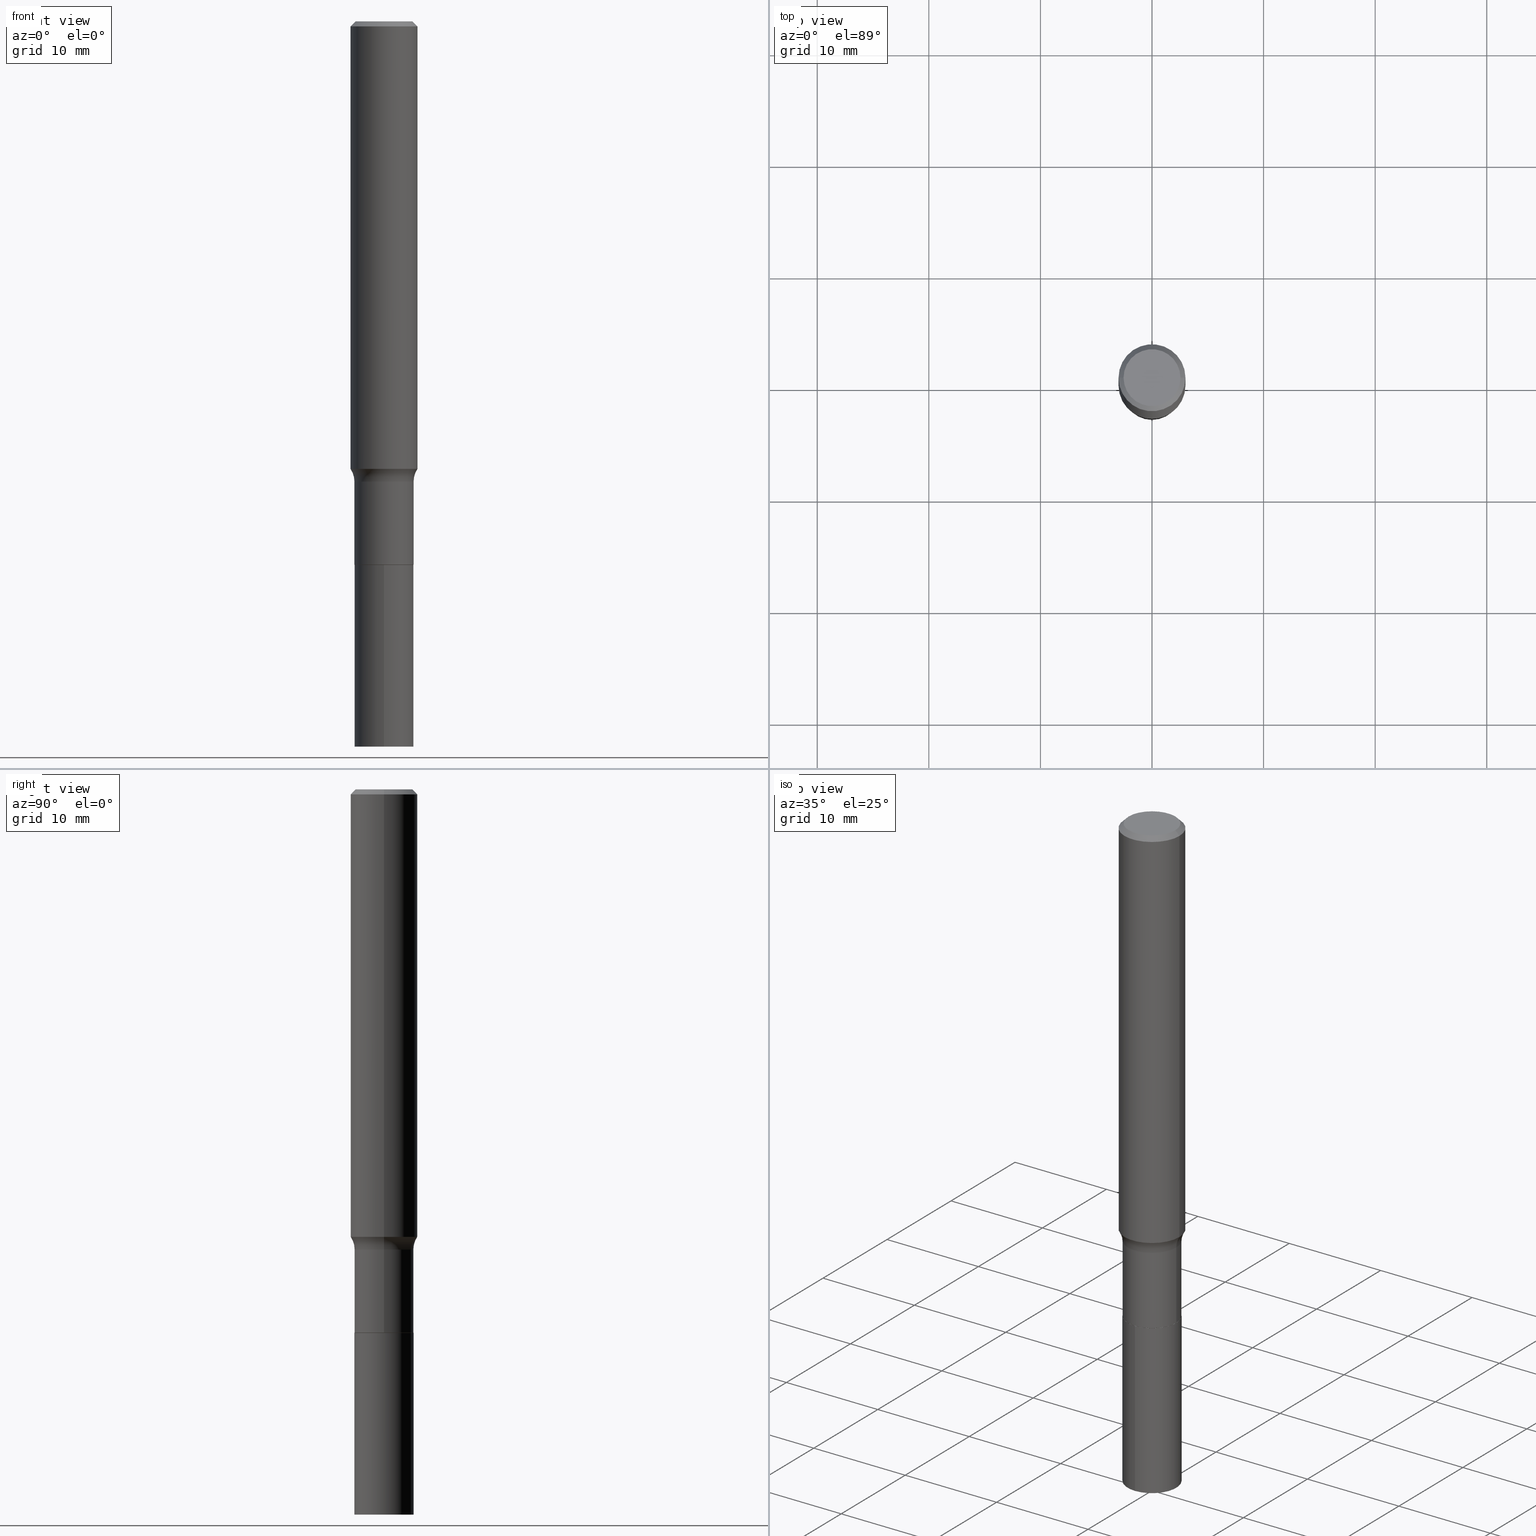
[diagram: canonical four-view strip — front | top / right | iso, engineering-drawing reading convention]
A machine part, canonical four-view strip (front | top / right | iso — engineering-drawing reading convention). The complete STEP part file that produces these views, byte-faithful:
ISO-10303-21;
HEADER;
FILE_DESCRIPTION (( 'STEP AP203' ),
    '1' );
FILE_NAME ('67728.STEP',
    '2024-04-19T16:13:01',
    ( '' ),
    ( '' ),
    'SwSTEP 2.0',
    'SolidWorks 2023',
    '' );
FILE_SCHEMA (( 'CONFIG_CONTROL_DESIGN' ));
ENDSEC;

DATA;
#1 = ORIENTED_EDGE ( 'NONE', *, *, #117, .F. ) ;
#2 = AXIS2_PLACEMENT_3D ( 'NONE', #454, #231, #405 ) ;
#3 = LOCAL_TIME ( 12, 13, 1.000000000000000000, #431 ) ;
#4 = ORIENTED_EDGE ( 'NONE', *, *, #138, .F. ) ;
#5 = EDGE_LOOP ( 'NONE', ( #334, #22 ) ) ;
#6 = EDGE_CURVE ( 'NONE', #77, #219, #241, .T. ) ;
#7 = EDGE_CURVE ( 'NONE', #189, #166, #35, .T. ) ;
#8 = ORIENTED_EDGE ( 'NONE', *, *, #124, .T. ) ;
#9 = COORDINATED_UNIVERSAL_TIME_OFFSET ( 5, 0, .BEHIND. ) ;
#10 = AXIS2_PLACEMENT_3D ( 'NONE', #62, #424, #246 ) ;
#11 = ORGANIZATION ( 'UNSPECIFIED', 'UNSPECIFIED', '' ) ;
#12 = CARTESIAN_POINT ( 'NONE',  ( 0.1843499999999999306, -6.956776567644963090E-15, -1.623800000000000132 ) ) ;
#13 = DIRECTION ( 'NONE',  ( -2.445682234328960793E-29, 3.491175697593613777E-15, 1.000000000000000000 ) ) ;
#14 = EDGE_CURVE ( 'NONE', #190, #395, #203, .T. ) ;
#15 = DIRECTION ( 'NONE',  ( -2.445468806185136597E-29, 3.491481338843145583E-15, 1.000000000000000000 ) ) ;
#16 = DIRECTION ( 'NONE',  ( 1.000000000000000000, -6.982962677686270655E-15, 0.000000000000000000 ) ) ;
#17 = ORIENTED_EDGE ( 'NONE', *, *, #191, .T. ) ;
#18 = CARTESIAN_POINT ( 'NONE',  ( 4.332147990156995868E-31, -6.185159191760670395E-17, -0.01771500000000010913 ) ) ;
#19 = ORIENTED_EDGE ( 'NONE', *, *, #459, .F. ) ;
#20 = CLOSED_SHELL ( 'NONE', ( #46, #105, #26, #234 ) ) ;
#21 = FACE_OUTER_BOUND ( 'NONE', #5, .T. ) ;
#22 = ORIENTED_EDGE ( 'NONE', *, *, #262, .T. ) ;
#23 = DIRECTION ( 'NONE',  ( 1.000000000000000000, -6.982962677686265133E-15, 4.883557194083112901E-29 ) ) ;
#24 = CARTESIAN_POINT ( 'NONE',  ( 6.258336242776719159E-29, -8.934853672551297411E-15, -2.559100000000000374 ) ) ;
#25 = CARTESIAN_POINT ( 'NONE',  ( 3.970952247483424919E-29, -5.669467398013499815E-15, -1.623800000000000132 ) ) ;
#26 = ADVANCED_FACE ( 'NONE', ( #50 ), #127, .T. ) ;
#27 = DIRECTION ( 'NONE',  ( -2.445468806185136597E-29, 3.491481338843145583E-15, 1.000000000000000000 ) ) ;
#28 = CIRCLE ( 'NONE', #151, 0.1043499999999999844 ) ;
#29 = DIRECTION ( 'NONE',  ( -2.445468806185136597E-29, 3.491481338843145583E-15, 1.000000000000000000 ) ) ;
#30 = DIRECTION ( 'NONE',  ( -2.445468806185136877E-29, 3.491481338843145188E-15, 1.000000000000000000 ) ) ;
#31 = CARTESIAN_POINT ( 'NONE',  ( 4.688208248337526170E-29, -6.693518874696195618E-15, -1.917100000000000248 ) ) ;
#32 =( NAMED_UNIT ( * ) PLANE_ANGLE_UNIT ( ) SI_UNIT ( $, .RADIAN. ) );
#33 = APPROVAL_STATUS ( 'not_yet_approved' ) ;
#34 = EDGE_CURVE ( 'NONE', #366, #44, #146, .T. ) ;
#35 = CIRCLE ( 'NONE', #309, 0.08000000000000002942 ) ;
#36 = APPLICATION_PROTOCOL_DEFINITION ( 'international standard', 'config_control_design', 1994, #112 ) ;
#37 = AXIS2_PLACEMENT_3D ( 'NONE', #25, #29, #216 ) ;
#38 = ORIENTED_EDGE ( 'NONE', *, *, #433, .T. ) ;
#39 = EDGE_LOOP ( 'NONE', ( #58, #235, #83, #222 ) ) ;
#40 = ORIENTED_EDGE ( 'NONE', *, *, #41, .T. ) ;
#41 = EDGE_CURVE ( 'NONE', #153, #261, #419, .T. ) ;
#42 = VERTEX_POINT ( 'NONE', #406 ) ;
#43 = CC_DESIGN_DATE_AND_TIME_ASSIGNMENT ( #245, #140, ( #54 ) ) ;
#44 = VERTEX_POINT ( 'NONE', #162 ) ;
#45 = ORIENTED_EDGE ( 'NONE', *, *, #197, .F. ) ;
#46 = ADVANCED_FACE ( 'NONE', ( #53 ), #308, .T. ) ;
#47 = DIRECTION ( 'NONE',  ( -2.445468806185136877E-29, 3.491481338843145188E-15, 1.000000000000000000 ) ) ;
#48 = AXIS2_PLACEMENT_3D ( 'NONE', #24, #170, #173 ) ;
#49 = AXIS2_PLACEMENT_3D ( 'NONE', #410, #93, #89 ) ;
#50 = FACE_OUTER_BOUND ( 'NONE', #279, .T. ) ;
#51 = DIRECTION ( 'NONE',  ( -6.982962677686265922E-15, -1.000000000000000000, 5.235932905920965262E-15 ) ) ;
#52 = DESIGN_CONTEXT ( 'detailed design', #263, 'design' ) ;
#53 = FACE_OUTER_BOUND ( 'NONE', #367, .T. ) ;
#54 = PRODUCT_DEFINITION ( 'UNKNOWN', '', #250, #52 ) ;
#55 = DIRECTION ( 'NONE',  ( -2.445468806185136597E-29, 3.491481338843145583E-15, 1.000000000000000000 ) ) ;
#56 = ADVANCED_FACE ( 'NONE', ( #360 ), #417, .F. ) ;
#57 = LINE ( 'NONE', #122, #389 ) ;
#58 = ORIENTED_EDGE ( 'NONE', *, *, #124, .F. ) ;
#59 = AXIS2_PLACEMENT_3D ( 'NONE', #315, #384, #106 ) ;
#60 = AXIS2_PLACEMENT_3D ( 'NONE', #445, #13, #380 ) ;
#61 = DIRECTION ( 'NONE',  ( 1.000000000000000000, -6.982962677686266711E-15, 4.876176775795936353E-29 ) ) ;
#62 = CARTESIAN_POINT ( 'NONE',  ( 0.000000000000000000, 0.000000000000000000, 0.000000000000000000 ) ) ;
#63 = EDGE_CURVE ( 'NONE', #349, #90, #375, .T. ) ;
#64 = CARTESIAN_POINT ( 'NONE',  ( -0.1043499999999999844, -5.439168921254473222E-15, -1.916600000000000303 ) ) ;
#65 = DIRECTION ( 'NONE',  ( -1.000000000000000000, 6.982962677686265922E-15, -4.876176775795935793E-29 ) ) ;
#66 = CARTESIAN_POINT ( 'NONE',  ( 7.414513447657111734E-16, 0.1043499999999932953, -1.917100000000000470 ) ) ;
#67 = DIRECTION ( 'NONE',  ( -2.445682234328960233E-29, 3.491175697593614171E-15, 1.000000000000000000 ) ) ;
#68 = CALENDAR_DATE ( 2024, 19, 4 ) ;
#69 = DIRECTION ( 'NONE',  ( -2.445468806185136597E-29, 3.491481338843145583E-15, 1.000000000000000000 ) ) ;
#70 = CARTESIAN_POINT ( 'NONE',  ( 0.1181000000000000799, -8.246878922347486570E-16, 5.758764772215004644E-30 ) ) ;
#71 =( NAMED_UNIT ( * ) SI_UNIT ( $, .STERADIAN. ) SOLID_ANGLE_UNIT ( ) );
#72 = ORIENTED_EDGE ( 'NONE', *, *, #6, .F. ) ;
#73 = EDGE_CURVE ( 'NONE', #190, #166, #218, .T. ) ;
#74 = APPROVAL_PERSON_ORGANIZATION ( #192, #184, #157 ) ;
#75 = ORIENTED_EDGE ( 'NONE', *, *, #285, .F. ) ;
#76 = ADVANCED_FACE ( 'NONE', ( #386 ), #180, .T. ) ;
#77 = VERTEX_POINT ( 'NONE', #352 ) ;
#78 = ORIENTED_EDGE ( 'NONE', *, *, #298, .T. ) ;
#79 = AXIS2_PLACEMENT_3D ( 'NONE', #453, #402, #193 ) ;
#80 = CIRCLE ( 'NONE', #118, 0.1181000000000001632 ) ;
#81 = EDGE_LOOP ( 'NONE', ( #75, #415, #343, #304 ) ) ;
#82 = DATE_AND_TIME ( #260, #333 ) ;
#83 = ORIENTED_EDGE ( 'NONE', *, *, #276, .T. ) ;
#84 = DIRECTION ( 'NONE',  ( -6.982962677686265922E-15, -1.000000000000000000, 2.617966452960482631E-15 ) ) ;
#85 = ORIENTED_EDGE ( 'NONE', *, *, #429, .F. ) ;
#86 = LINE ( 'NONE', #163, #430 ) ;
#87 = AXIS2_PLACEMENT_3D ( 'NONE', #198, #15, #160 ) ;
#88 = DIRECTION ( 'NONE',  ( 1.000000000000000000, -6.982962677686269077E-15, 0.000000000000000000 ) ) ;
#89 = DIRECTION ( 'NONE',  ( 1.000000000000000000, -6.982962677686266711E-15, 0.000000000000000000 ) ) ;
#90 = VERTEX_POINT ( 'NONE', #142 ) ;
#91 = DIRECTION ( 'NONE',  ( 1.000000000000000000, -6.982962677686266711E-15, 4.875668750515085695E-29 ) ) ;
#92 = ORIENTED_EDGE ( 'NONE', *, *, #262, .F. ) ;
#93 = DIRECTION ( 'NONE',  ( -2.445468806185136597E-29, 3.491481338843145583E-15, 1.000000000000000000 ) ) ;
#94 = DIRECTION ( 'NONE',  ( 0.7071067811865455743, -7.319954787623248157E-15, -0.7071067811865493491 ) ) ;
#95 = AXIS2_PLACEMENT_3D ( 'NONE', #98, #27, #292 ) ;
#96 = CONICAL_SURFACE ( 'NONE', #215, 0.1038499999999999840, 0.7853981633975507526 ) ;
#97 = CARTESIAN_POINT ( 'NONE',  ( 4.332147990156995868E-31, -6.185159191760670395E-17, -0.01771500000000010913 ) ) ;
#98 = CARTESIAN_POINT ( 'NONE',  ( 4.686985513934433368E-29, -6.691773134026774115E-15, -1.916600000000000303 ) ) ;
#99 = ADVANCED_FACE ( 'NONE', ( #425 ), #172, .F. ) ;
#100 = APPLICATION_PROTOCOL_DEFINITION ( 'international standard', 'config_control_design', 1994, #263 ) ;
#101 = CYLINDRICAL_SURFACE ( 'NONE', #10, 0.1043499999999999706 ) ;
#102 = CALENDAR_DATE ( 2024, 19, 4 ) ;
#103 = MANIFOLD_SOLID_BREP ( 'Body-Move/Copy2[2]', #266 ) ;
#104 = DIRECTION ( 'NONE',  ( 1.000000000000000000, -6.982962677686268288E-15, 0.000000000000000000 ) ) ;
#105 = ADVANCED_FACE ( 'NONE', ( #249 ), #390, .F. ) ;
#106 = DIRECTION ( 'NONE',  ( 1.000000000000000000, -6.982962677686265133E-15, 4.883557194083112901E-29 ) ) ;
#107 = CIRCLE ( 'NONE', #49, 0.1180999999999999966 ) ;
#108 = MANIFOLD_SOLID_BREP ( 'Body-Move/Copy2[1]', #20 ) ;
#109 = FACE_OUTER_BOUND ( 'NONE', #451, .T. ) ;
#110 = APPROVAL_DATE_TIME ( #426, #348 ) ;
#111 = DIRECTION ( 'NONE',  ( 1.000000000000000000, 0.000000000000000000, 0.000000000000000000 ) ) ;
#112 = APPLICATION_CONTEXT ( 'configuration controlled 3d designs of mechanical parts and assemblies' ) ;
#113 = CIRCLE ( 'NONE', #37, 0.1043499999999999567 ) ;
#114 = ORIENTED_EDGE ( 'NONE', *, *, #371, .F. ) ;
#115 = ORIENTED_EDGE ( 'NONE', *, *, #362, .T. ) ;
#116 = EDGE_LOOP ( 'NONE', ( #365, #188, #238, #19 ) ) ;
#117 = EDGE_CURVE ( 'NONE', #44, #366, #449, .T. ) ;
#118 = AXIS2_PLACEMENT_3D ( 'NONE', #347, #447, #16 ) ;
#119 = APPROVAL_STATUS ( 'not_yet_approved' ) ;
#120 = ORIENTED_EDGE ( 'NONE', *, *, #191, .F. ) ;
#121 = CC_DESIGN_PERSON_AND_ORGANIZATION_ASSIGNMENT ( #171, #181, ( #54 ) ) ;
#122 = CARTESIAN_POINT ( 'NONE',  ( -0.1038499999999999840, -5.955620243609330802E-15, -1.917100000000000248 ) ) ;
#123 = DIRECTION ( 'NONE',  ( 7.105427357601001859E-15, 1.000000000000000000, -3.491481338843145583E-15 ) ) ;
#124 = EDGE_CURVE ( 'NONE', #77, #299, #455, .T. ) ;
#125 = CARTESIAN_POINT ( 'NONE',  ( 0.1180999999999999966, -8.865394841523547570E-16, -0.01771500000000010913 ) ) ;
#126 = CONICAL_SURFACE ( 'NONE', #290, 0.1180999999999999966, 0.7853981633974456145 ) ;
#127 = CYLINDRICAL_SURFACE ( 'NONE', #301, 0.1043499999999999844 ) ;
#128 = FACE_OUTER_BOUND ( 'NONE', #448, .T. ) ;
#129 = APPROVAL ( #33, 'UNSPECIFIED' ) ;
#130 = ORIENTED_EDGE ( 'NONE', *, *, #14, .F. ) ;
#131 = CARTESIAN_POINT ( 'NONE',  ( 0.000000000000000000, 0.000000000000000000, 0.000000000000000000 ) ) ;
#132 = DIRECTION ( 'NONE',  ( 1.000000000000000000, -6.982962677686268288E-15, 0.000000000000000000 ) ) ;
#133 = CARTESIAN_POINT ( 'NONE',  ( 4.688208248337526170E-29, -6.693518874696195618E-15, -1.917100000000000248 ) ) ;
#134 = VECTOR ( 'NONE', #270, 39.37007874015748143 ) ;
#135 = CARTESIAN_POINT ( 'NONE',  ( 4.688208248337526170E-29, -6.693518874696195618E-15, -1.917100000000000248 ) ) ;
#136 = AXIS2_PLACEMENT_3D ( 'NONE', #161, #282, #84 ) ;
#137 = MECHANICAL_CONTEXT ( 'NONE', #112, 'mechanical' ) ;
#138 = EDGE_CURVE ( 'NONE', #153, #189, #329, .T. ) ;
#139 = LINE ( 'NONE', #281, #364 ) ;
#140 = DATE_TIME_ROLE ( 'creation_date' ) ;
#141 = LINE ( 'NONE', #70, #302 ) ;
#142 = CARTESIAN_POINT ( 'NONE',  ( -7.286721554164991048E-16, -0.1043500000000089217, -2.559099999999999930 ) ) ;
#143 = PERSON_AND_ORGANIZATION ( #404, #11 ) ;
#144 = DIRECTION ( 'NONE',  ( 1.000000000000000000, -6.982962677686270655E-15, 0.000000000000000000 ) ) ;
#145 = PERSON_AND_ORGANIZATION ( #404, #11 ) ;
#146 = CIRCLE ( 'NONE', #87, 0.1038499999999999840 ) ;
#147 =( CONVERSION_BASED_UNIT ( 'INCH', #148 ) LENGTH_UNIT ( ) NAMED_UNIT ( #418 ) );
#148 = LENGTH_MEASURE_WITH_UNIT ( LENGTH_MEASURE( 0.02539999999999999897 ), #318 );
#149 = ORIENTED_EDGE ( 'NONE', *, *, #7, .F. ) ;
#150 = ORIENTED_EDGE ( 'NONE', *, *, #14, .T. ) ;
#151 = AXIS2_PLACEMENT_3D ( 'NONE', #236, #274, #51 ) ;
#152 = CC_DESIGN_APPROVAL ( #129, ( #54 ) ) ;
#153 = VERTEX_POINT ( 'NONE', #422 ) ;
#154 = EDGE_CURVE ( 'NONE', #395, #190, #358, .T. ) ;
#155 = ORIENTED_EDGE ( 'NONE', *, *, #34, .F. ) ;
#156 = AXIS2_PLACEMENT_3D ( 'NONE', #167, #240, #201 ) ;
#157 = APPROVAL_ROLE ( '' ) ;
#158 = DIRECTION ( 'NONE',  ( -6.982962677686266711E-15, -1.000000000000000000, 3.491481338843145583E-15 ) ) ;
#159 = DIRECTION ( 'NONE',  ( 1.000000000000000000, -6.982962677686268288E-15, 0.000000000000000000 ) ) ;
#160 = DIRECTION ( 'NONE',  ( 1.000000000000000000, -6.982962677686268288E-15, 0.000000000000000000 ) ) ;
#161 = CARTESIAN_POINT ( 'NONE',  ( 4.688208248337526170E-29, -6.693518874696195618E-15, -1.917100000000000248 ) ) ;
#162 = CARTESIAN_POINT ( 'NONE',  ( 0.1038499999999999840, -7.418699548773913444E-15, -1.917100000000000248 ) ) ;
#163 = CARTESIAN_POINT ( 'NONE',  ( -0.1180999999999999966, 7.628363003171413738E-16, -0.01771500000000010913 ) ) ;
#164 = CIRCLE ( 'NONE', #213, 0.1003850000000000159 ) ;
#165 = AXIS2_PLACEMENT_3D ( 'NONE', #179, #432, #111 ) ;
#166 = VERTEX_POINT ( 'NONE', #458 ) ;
#167 = CARTESIAN_POINT ( 'NONE',  ( 4.688208248337526170E-29, -6.693518874696195618E-15, -1.917100000000000248 ) ) ;
#168 = ORIENTED_EDGE ( 'NONE', *, *, #371, .T. ) ;
#169 = LINE ( 'NONE', #340, #134 ) ;
#170 = DIRECTION ( 'NONE',  ( -2.445682234328960793E-29, 3.491175697593613777E-15, 1.000000000000000000 ) ) ;
#171 = PERSON_AND_ORGANIZATION ( #404, #11 ) ;
#172 = TOROIDAL_SURFACE ( 'NONE', #59, 0.1843499999999999306, 0.08000000000000002942 ) ;
#173 = DIRECTION ( 'NONE',  ( -6.982962677686265922E-15, -1.000000000000000000, 5.235932905920965262E-15 ) ) ;
#174 = LOCAL_TIME ( 12, 13, 1.000000000000000000, #331 ) ;
#175 = DIRECTION ( 'NONE',  ( 2.445468806185136597E-29, -3.491481338843145583E-15, -1.000000000000000000 ) ) ;
#176 = DIRECTION ( 'NONE',  ( 2.438088387897960049E-29, -3.491481338843145188E-15, -1.000000000000000000 ) ) ;
#177 = SECURITY_CLASSIFICATION_LEVEL ( 'unclassified' ) ;
#178 = CC_DESIGN_PERSON_AND_ORGANIZATION_ASSIGNMENT ( #323, #251, ( #273 ) ) ;
#179 = CARTESIAN_POINT ( 'NONE',  ( 0.000000000000000000, 0.000000000000000000, 0.000000000000000000 ) ) ;
#180 = CYLINDRICAL_SURFACE ( 'NONE', #396, 0.1181000000000000799 ) ;
#181 = PERSON_AND_ORGANIZATION_ROLE ( 'creator' ) ;
#182 = AXIS2_PLACEMENT_3D ( 'NONE', #135, #320, #132 ) ;
#183 = AXIS2_PLACEMENT_3D ( 'NONE', #325, #463, #460 ) ;
#184 = APPROVAL ( #119, 'UNSPECIFIED' ) ;
#185 = ORIENTED_EDGE ( 'NONE', *, *, #362, .F. ) ;
#186 = EDGE_CURVE ( 'NONE', #395, #261, #139, .T. ) ;
#187 = ADVANCED_FACE ( 'NONE', ( #242 ), #101, .T. ) ;
#188 = ORIENTED_EDGE ( 'NONE', *, *, #154, .T. ) ;
#189 = VERTEX_POINT ( 'NONE', #387 ) ;
#190 = VERTEX_POINT ( 'NONE', #307 ) ;
#191 = EDGE_CURVE ( 'NONE', #90, #349, #28, .T. ) ;
#192 = PERSON_AND_ORGANIZATION ( #404, #11 ) ;
#193 = DIRECTION ( 'NONE',  ( 1.000000000000000000, -6.982962677686266711E-15, 4.875668750515085695E-29 ) ) ;
#194 = AXIS2_PLACEMENT_3D ( 'NONE', #131, #413, #61 ) ;
#195 = CARTESIAN_POINT ( 'NONE',  ( -7.286721554165148820E-16, -0.1043500000000066874, -1.917099999999999804 ) ) ;
#196 = LOCAL_TIME ( 12, 13, 1.000000000000000000, #316 ) ;
#197 = EDGE_CURVE ( 'NONE', #44, #190, #169, .T. ) ;
#198 = CARTESIAN_POINT ( 'NONE',  ( 4.688208248337526170E-29, -6.693518874696195618E-15, -1.917100000000000248 ) ) ;
#199 = DIRECTION ( 'NONE',  ( -2.445468806185136597E-29, 3.491481338843145583E-15, 1.000000000000000000 ) ) ;
#200 = ORIENTED_EDGE ( 'NONE', *, *, #414, .T. ) ;
#201 = DIRECTION ( 'NONE',  ( 6.982962677686265922E-15, 1.000000000000000000, -3.491175697593614171E-15 ) ) ;
#202 = DIRECTION ( 'NONE',  ( 2.445468806185136597E-29, -3.491481338843145583E-15, -1.000000000000000000 ) ) ;
#203 = CIRCLE ( 'NONE', #441, 0.1043499999999999844 ) ;
#204 = TOROIDAL_SURFACE ( 'NONE', #346, 0.1843499999999999306, 0.08000000000000002942 ) ;
#205 = ORIENTED_EDGE ( 'NONE', *, *, #459, .T. ) ;
#206 = LINE ( 'NONE', #373, #442 ) ;
#207 = CARTESIAN_POINT ( 'NONE',  ( 3.507850874923593654E-46, -5.008281372579124849E-32, -1.434428795841294606E-17 ) ) ;
#208 = APPROVAL_DATE_TIME ( #353, #129 ) ;
#209 = DIRECTION ( 'NONE',  ( -2.445468806185136597E-29, 3.491481338843145583E-15, 1.000000000000000000 ) ) ;
#210 = DIRECTION ( 'NONE',  ( -2.445682234328960793E-29, 3.491175697593613777E-15, 1.000000000000000000 ) ) ;
#211 = APPROVAL_STATUS ( 'not_yet_approved' ) ;
#212 = LINE ( 'NONE', #243, #319 ) ;
#213 = AXIS2_PLACEMENT_3D ( 'NONE', #280, #199, #91 ) ;
#214 = DIRECTION ( 'NONE',  ( -6.982962677686265922E-15, -1.000000000000000000, 2.617966452960482631E-15 ) ) ;
#215 = AXIS2_PLACEMENT_3D ( 'NONE', #385, #328, #104 ) ;
#216 = DIRECTION ( 'NONE',  ( 1.000000000000000000, -6.982962677686265922E-15, 0.000000000000000000 ) ) ;
#217 = ADVANCED_FACE ( 'NONE', ( #314 ), #227, .T. ) ;
#218 = LINE ( 'NONE', #244, #465 ) ;
#219 = VERTEX_POINT ( 'NONE', #305 ) ;
#220 = ORIENTED_EDGE ( 'NONE', *, *, #298, .F. ) ;
#221 = ORIENTED_EDGE ( 'NONE', *, *, #73, .F. ) ;
#222 = ORIENTED_EDGE ( 'NONE', *, *, #327, .T. ) ;
#223 = CC_DESIGN_APPROVAL ( #348, ( #250 ) ) ;
#224 = ORIENTED_EDGE ( 'NONE', *, *, #414, .F. ) ;
#225 = APPROVAL_DATE_TIME ( #268, #184 ) ;
#226 = ORIENTED_EDGE ( 'NONE', *, *, #7, .T. ) ;
#227 = CYLINDRICAL_SURFACE ( 'NONE', #194, 0.1181000000000000799 ) ;
#228 = DIRECTION ( 'NONE',  ( -2.445468806185136597E-29, 3.491481338843145583E-15, 1.000000000000000000 ) ) ;
#229 = AXIS2_PLACEMENT_3D ( 'NONE', #207, #176, #65 ) ;
#230 = CC_DESIGN_SECURITY_CLASSIFICATION ( #273, ( #250 ) ) ;
#231 = DIRECTION ( 'NONE',  ( -2.438088387897960049E-29, 3.491481338843145188E-15, 1.000000000000000000 ) ) ;
#232 = CARTESIAN_POINT ( 'NONE',  ( 4.688208248337526170E-29, -6.693518874696195618E-15, -1.917100000000000248 ) ) ;
#233 = FACE_OUTER_BOUND ( 'NONE', #39, .T. ) ;
#234 = ADVANCED_FACE ( 'NONE', ( #21 ), #312, .F. ) ;
#235 = ORIENTED_EDGE ( 'NONE', *, *, #237, .F. ) ;
#236 = CARTESIAN_POINT ( 'NONE',  ( 6.258336242776719159E-29, -8.934853672551297411E-15, -2.559100000000000374 ) ) ;
#237 = EDGE_CURVE ( 'NONE', #219, #77, #164, .T. ) ;
#238 = ORIENTED_EDGE ( 'NONE', *, *, #73, .T. ) ;
#239 = ADVANCED_FACE ( 'NONE', ( #450 ), #277, .F. ) ;
#240 = DIRECTION ( 'NONE',  ( 2.445682234328960233E-29, -3.491175697593614171E-15, -1.000000000000000000 ) ) ;
#241 = CIRCLE ( 'NONE', #79, 0.1003850000000000159 ) ;
#242 = FACE_OUTER_BOUND ( 'NONE', #116, .T. ) ;
#243 = CARTESIAN_POINT ( 'NONE',  ( -7.286721554165148820E-16, -0.1043500000000066874, -1.917099999999999804 ) ) ;
#244 = CARTESIAN_POINT ( 'NONE',  ( 0.1043499999999999706, -7.286721554165617206E-16, 5.088290465543058008E-30 ) ) ;
#245 = DATE_AND_TIME ( #456, #196 ) ;
#246 = DIRECTION ( 'NONE',  ( 1.000000000000000000, -6.982962677686266711E-15, 4.876176775795936353E-29 ) ) ;
#247 = PERSON_AND_ORGANIZATION_ROLE ( 'creator' ) ;
#248 = FACE_OUTER_BOUND ( 'NONE', #81, .T. ) ;
#249 = FACE_OUTER_BOUND ( 'NONE', #300, .T. ) ;
#250 = PRODUCT_DEFINITION_FORMATION_WITH_SPECIFIED_SOURCE ( 'ANY', '', #345, .NOT_KNOWN. ) ;
#251 = PERSON_AND_ORGANIZATION_ROLE ( 'classification_officer' ) ;
#252 = CARTESIAN_POINT ( 'NONE',  ( -0.1180999999999999966, -1.948223441102449784E-15, -0.01771500000000010913 ) ) ;
#253 = ADVANCED_FACE ( 'NONE', ( #233 ), #126, .T. ) ;
#254 = CARTESIAN_POINT ( 'NONE',  ( 0.000000000000000000, 0.000000000000000000, 0.000000000000000000 ) ) ;
#255 = AXIS2_PLACEMENT_3D ( 'NONE', #306, #123, #271 ) ;
#256 = AXIS2_PLACEMENT_3D ( 'NONE', #254, #209, #321 ) ;
#257 = ORIENTED_EDGE ( 'NONE', *, *, #237, .T. ) ;
#258 = ORIENTED_EDGE ( 'NONE', *, *, #186, .T. ) ;
#259 = CC_DESIGN_PERSON_AND_ORGANIZATION_ASSIGNMENT ( #393, #388, ( #250 ) ) ;
#260 = CALENDAR_DATE ( 2024, 19, 4 ) ;
#261 = VERTEX_POINT ( 'NONE', #452 ) ;
#262 = EDGE_CURVE ( 'NONE', #42, #296, #272, .T. ) ;
#263 = APPLICATION_CONTEXT ( 'configuration controlled 3d designs of mechanical parts and assemblies' ) ;
#264 = ORIENTED_EDGE ( 'NONE', *, *, #327, .F. ) ;
#265 = CC_DESIGN_PERSON_AND_ORGANIZATION_ASSIGNMENT ( #143, #247, ( #250 ) ) ;
#266 = CLOSED_SHELL ( 'NONE', ( #278, #427, #217, #99, #355, #187, #335, #76, #253, #56, #239, #439 ) ) ;
#267 = CONICAL_SURFACE ( 'NONE', #369, 0.1180999999999999966, 0.7853981633974456145 ) ;
#268 = DATE_AND_TIME ( #303, #408 ) ;
#269 = DIRECTION ( 'NONE',  ( 1.000000000000000000, -6.982962677686263555E-15, 0.000000000000000000 ) ) ;
#270 = DIRECTION ( 'NONE',  ( 0.7071067811866199593, -2.468850131083015945E-15, 0.7071067811864750752 ) ) ;
#271 = DIRECTION ( 'NONE',  ( -1.000000000000000000, 7.105427357601001859E-15, 0.000000000000000000 ) ) ;
#272 = CIRCLE ( 'NONE', #60, 0.1043499999999999844 ) ;
#273 = SECURITY_CLASSIFICATION ( '', '', #177 ) ;
#274 = DIRECTION ( 'NONE',  ( -2.445682234328960793E-29, 3.491175697593613777E-15, 1.000000000000000000 ) ) ;
#275 = ORIENTED_EDGE ( 'NONE', *, *, #138, .T. ) ;
#276 = EDGE_CURVE ( 'NONE', #219, #397, #86, .T. ) ;
#277 = PLANE ( 'NONE',  #2 ) ;
#278 = ADVANCED_FACE ( 'NONE', ( #128 ), #330, .T. ) ;
#279 = EDGE_LOOP ( 'NONE', ( #114, #313, #200, #92 ) ) ;
#280 = CARTESIAN_POINT ( 'NONE',  ( 7.015701749847187307E-46, -1.001656274515824970E-31, -2.868857591682589212E-17 ) ) ;
#281 = CARTESIAN_POINT ( 'NONE',  ( -0.1043499999999999706, 7.414513447656643348E-16, -5.132908766680992704E-30 ) ) ;
#282 = DIRECTION ( 'NONE',  ( -2.445682234328960793E-29, 3.491175697593613777E-15, 1.000000000000000000 ) ) ;
#283 = APPROVAL_PERSON_ORGANIZATION ( #435, #129, #409 ) ;
#284 = CARTESIAN_POINT ( 'NONE',  ( 0.1180999999999999966, -8.720764054544245267E-16, -0.01771500000000010913 ) ) ;
#285 = EDGE_CURVE ( 'NONE', #366, #395, #57, .T. ) ;
#286 = PERSON_AND_ORGANIZATION_ROLE ( 'design_owner' ) ;
#287 = DIRECTION ( 'NONE',  ( -2.445468806185136877E-29, 3.491481338843145188E-15, 1.000000000000000000 ) ) ;
#288 = CYLINDRICAL_SURFACE ( 'NONE', #256, 0.1043499999999999706 ) ;
#289 = DIRECTION ( 'NONE',  ( -2.445468806185136597E-29, 3.491481338843145583E-15, 1.000000000000000000 ) ) ;
#290 = AXIS2_PLACEMENT_3D ( 'NONE', #18, #202, #377 ) ;
#291 = CC_DESIGN_DATE_AND_TIME_ASSIGNMENT ( #82, #336, ( #273 ) ) ;
#292 = DIRECTION ( 'NONE',  ( 1.000000000000000000, -6.982962677686263555E-15, 0.000000000000000000 ) ) ;
#293 = AXIS2_PLACEMENT_3D ( 'NONE', #133, #310, #159 ) ;
#294 = EDGE_CURVE ( 'NONE', #296, #42, #339, .T. ) ;
#295 =( GEOMETRIC_REPRESENTATION_CONTEXT ( 3 ) GLOBAL_UNCERTAINTY_ASSIGNED_CONTEXT ( ( #324 ) ) GLOBAL_UNIT_ASSIGNED_CONTEXT ( ( #147, #32, #71 ) ) REPRESENTATION_CONTEXT ( 'NONE', 'WORKASPACE' ) );
#296 = VERTEX_POINT ( 'NONE', #195 ) ;
#297 = EDGE_LOOP ( 'NONE', ( #257, #374 ) ) ;
#298 = EDGE_CURVE ( 'NONE', #189, #153, #80, .T. ) ;
#299 = VERTEX_POINT ( 'NONE', #125 ) ;
#300 = EDGE_LOOP ( 'NONE', ( #120, #341 ) ) ;
#301 = AXIS2_PLACEMENT_3D ( 'NONE', #232, #378, #446 ) ;
#302 = VECTOR ( 'NONE', #423, 39.37007874015748143 ) ;
#303 = CALENDAR_DATE ( 2024, 19, 4 ) ;
#304 = ORIENTED_EDGE ( 'NONE', *, *, #154, .F. ) ;
#305 = CARTESIAN_POINT ( 'NONE',  ( -0.1003850000000000159, 7.319105043583386689E-16, -2.868857591683090262E-17 ) ) ;
#306 = CARTESIAN_POINT ( 'NONE',  ( -0.1843499999999999306, -4.359581864639755813E-15, -1.623800000000000132 ) ) ;
#307 = CARTESIAN_POINT ( 'NONE',  ( 0.1043499999999999844, -7.420445289443335737E-15, -1.916600000000000303 ) ) ;
#308 = CYLINDRICAL_SURFACE ( 'NONE', #317, 0.1043499999999999844 ) ;
#309 = AXIS2_PLACEMENT_3D ( 'NONE', #12, #158, #88 ) ;
#310 = DIRECTION ( 'NONE',  ( -2.445468806185136597E-29, 3.491481338843145583E-15, 1.000000000000000000 ) ) ;
#311 = ORIENTED_EDGE ( 'NONE', *, *, #276, .F. ) ;
#312 = PLANE ( 'NONE',  #156 ) ;
#313 = ORIENTED_EDGE ( 'NONE', *, *, #63, .T. ) ;
#314 = FACE_OUTER_BOUND ( 'NONE', #411, .T. ) ;
#315 = CARTESIAN_POINT ( 'NONE',  ( 3.970952247483424919E-29, -5.669467398013499815E-15, -1.623800000000000132 ) ) ;
#316 = COORDINATED_UNIVERSAL_TIME_OFFSET ( 5, 0, .BEHIND. ) ;
#317 = AXIS2_PLACEMENT_3D ( 'NONE', #31, #210, #214 ) ;
#318 =( LENGTH_UNIT ( ) NAMED_UNIT ( * ) SI_UNIT ( $, .METRE. ) );
#319 = VECTOR ( 'NONE', #363, 39.37007874015748143 ) ;
#320 = DIRECTION ( 'NONE',  ( -2.445468806185136597E-29, 3.491481338843145583E-15, 1.000000000000000000 ) ) ;
#321 = DIRECTION ( 'NONE',  ( 1.000000000000000000, -6.982962677686266711E-15, 4.876176775795936353E-29 ) ) ;
#322 = CARTESIAN_POINT ( 'NONE',  ( 0.000000000000000000, 0.000000000000000000, 0.000000000000000000 ) ) ;
#323 = PERSON_AND_ORGANIZATION ( #404, #11 ) ;
#324 = UNCERTAINTY_MEASURE_WITH_UNIT (LENGTH_MEASURE( 1.000000000000000082E-05 ), #147, 'distance_accuracy_value', 'NONE');
#325 = CARTESIAN_POINT ( 'NONE',  ( 4.332147990156995868E-31, -6.185159191760670395E-17, -0.01771500000000010913 ) ) ;
#326 = CARTESIAN_POINT ( 'NONE',  ( 3.861288921395363891E-29, -5.512897232152652130E-15, -1.578956522213369240 ) ) ;
#327 = EDGE_CURVE ( 'NONE', #397, #299, #107, .T. ) ;
#328 = DIRECTION ( 'NONE',  ( -2.445468806185136597E-29, 3.491481338843145583E-15, 1.000000000000000000 ) ) ;
#329 = CIRCLE ( 'NONE', #338, 0.1181000000000001632 ) ;
#330 = CONICAL_SURFACE ( 'NONE', #293, 0.1038499999999999840, 0.7853981633975507526 ) ;
#331 = COORDINATED_UNIVERSAL_TIME_OFFSET ( 5, 0, .BEHIND. ) ;
#332 = ORIENTED_EDGE ( 'NONE', *, *, #117, .T. ) ;
#333 = LOCAL_TIME ( 12, 13, 1.000000000000000000, #391 ) ;
#334 = ORIENTED_EDGE ( 'NONE', *, *, #294, .T. ) ;
#335 = ADVANCED_FACE ( 'NONE', ( #383 ), #204, .F. ) ;
#336 = DATE_TIME_ROLE ( 'classification_date' ) ;
#337 = EDGE_LOOP ( 'NONE', ( #437, #220, #226, #115 ) ) ;
#338 = AXIS2_PLACEMENT_3D ( 'NONE', #326, #464, #144 ) ;
#339 = CIRCLE ( 'NONE', #136, 0.1043499999999999844 ) ;
#340 = CARTESIAN_POINT ( 'NONE',  ( 0.1038499999999999840, -7.418699548773913444E-15, -1.917100000000000248 ) ) ;
#341 = ORIENTED_EDGE ( 'NONE', *, *, #63, .F. ) ;
#342 = DIRECTION ( 'NONE',  ( -0.7071067811866199593, 7.493145998870616062E-15, 0.7071067811864750752 ) ) ;
#343 = ORIENTED_EDGE ( 'NONE', *, *, #197, .T. ) ;
#344 = CARTESIAN_POINT ( 'NONE',  ( 7.414513447657190620E-16, 0.1043499999999910610, -2.559100000000001263 ) ) ;
#345 = PRODUCT ( '67728', '67728', '', ( #137 ) ) ;
#346 = AXIS2_PLACEMENT_3D ( 'NONE', #351, #55, #23 ) ;
#347 = CARTESIAN_POINT ( 'NONE',  ( 3.861288921395363891E-29, -5.512897232152652130E-15, -1.578956522213369240 ) ) ;
#348 = APPROVAL ( #211, 'UNSPECIFIED' ) ;
#349 = VERTEX_POINT ( 'NONE', #344 ) ;
#350 = EDGE_CURVE ( 'NONE', #153, #397, #206, .T. ) ;
#351 = CARTESIAN_POINT ( 'NONE',  ( 3.970952247483424919E-29, -5.669467398013499815E-15, -1.623800000000000132 ) ) ;
#352 = CARTESIAN_POINT ( 'NONE',  ( 0.1003850000000000159, -7.803837484803599345E-16, -2.868857591682071522E-17 ) ) ;
#353 = DATE_AND_TIME ( #68, #3 ) ;
#354 = LINE ( 'NONE', #66, #420 ) ;
#355 = ADVANCED_FACE ( 'NONE', ( #109 ), #288, .T. ) ;
#356 = DIRECTION ( 'NONE',  ( -6.982962677686265922E-15, -1.000000000000000000, 3.491175697593614171E-15 ) ) ;
#357 = APPROVAL_ROLE ( '' ) ;
#358 = CIRCLE ( 'NONE', #95, 0.1043499999999999844 ) ;
#359 = DIRECTION ( 'NONE',  ( -1.000000000000000000, 6.982962677686266711E-15, 0.000000000000000000 ) ) ;
#360 = FACE_OUTER_BOUND ( 'NONE', #297, .T. ) ;
#361 = CARTESIAN_POINT ( 'NONE',  ( -3.098465129544140770E-29, -2.233432579377583870E-14, -2.559100000000000374 ) ) ;
#362 = EDGE_CURVE ( 'NONE', #166, #261, #457, .T. ) ;
#363 = DIRECTION ( 'NONE',  ( -2.445682234328960513E-29, 3.491175697593614171E-15, 1.000000000000000000 ) ) ;
#364 = VECTOR ( 'NONE', #287, 39.37007874015748143 ) ;
#365 = ORIENTED_EDGE ( 'NONE', *, *, #186, .F. ) ;
#366 = VERTEX_POINT ( 'NONE', #428 ) ;
#367 = EDGE_LOOP ( 'NONE', ( #17, #168, #403, #224 ) ) ;
#368 = VECTOR ( 'NONE', #94, 39.37007874015748854 ) ;
#369 = AXIS2_PLACEMENT_3D ( 'NONE', #97, #175, #359 ) ;
#370 = PRODUCT_RELATED_PRODUCT_CATEGORY ( 'detail', '', ( #345 ) ) ;
#371 = EDGE_CURVE ( 'NONE', #349, #42, #354, .T. ) ;
#372 = ORIENTED_EDGE ( 'NONE', *, *, #433, .F. ) ;
#373 = CARTESIAN_POINT ( 'NONE',  ( -0.1181000000000000799, 8.391509709326788873E-16, -5.809262341591047988E-30 ) ) ;
#374 = ORIENTED_EDGE ( 'NONE', *, *, #6, .T. ) ;
#375 = CIRCLE ( 'NONE', #48, 0.1043499999999999844 ) ;
#376 = APPROVAL_PERSON_ORGANIZATION ( #145, #348, #357 ) ;
#377 = DIRECTION ( 'NONE',  ( -1.000000000000000000, 6.982962677686266711E-15, 0.000000000000000000 ) ) ;
#378 = DIRECTION ( 'NONE',  ( -2.445682234328960793E-29, 3.491175697593613777E-15, 1.000000000000000000 ) ) ;
#379 = EDGE_LOOP ( 'NONE', ( #1, #155 ) ) ;
#380 = DIRECTION ( 'NONE',  ( -6.982962677686265922E-15, -1.000000000000000000, 2.617966452960482631E-15 ) ) ;
#381 = ORIENTED_EDGE ( 'NONE', *, *, #350, .T. ) ;
#382 = CIRCLE ( 'NONE', #183, 0.1180999999999999966 ) ;
#383 = FACE_OUTER_BOUND ( 'NONE', #337, .T. ) ;
#384 = DIRECTION ( 'NONE',  ( -2.445468806185136597E-29, 3.491481338843145583E-15, 1.000000000000000000 ) ) ;
#385 = CARTESIAN_POINT ( 'NONE',  ( 4.688208248337526170E-29, -6.693518874696195618E-15, -1.917100000000000248 ) ) ;
#386 = FACE_OUTER_BOUND ( 'NONE', #398, .T. ) ;
#387 = CARTESIAN_POINT ( 'NONE',  ( 0.1181000000000001909, -6.337585124387401970E-15, -1.578956522213369240 ) ) ;
#388 = PERSON_AND_ORGANIZATION_ROLE ( 'design_supplier' ) ;
#389 = VECTOR ( 'NONE', #342, 39.37007874015748143 ) ;
#390 = PLANE ( 'NONE',  #407 ) ;
#391 = COORDINATED_UNIVERSAL_TIME_OFFSET ( 5, 0, .BEHIND. ) ;
#392 = FACE_OUTER_BOUND ( 'NONE', #438, .T. ) ;
#393 = PERSON_AND_ORGANIZATION ( #404, #11 ) ;
#394 = DIRECTION ( 'NONE',  ( 1.000000000000000000, -6.982962677686265922E-15, 0.000000000000000000 ) ) ;
#395 = VERTEX_POINT ( 'NONE', #64 ) ;
#396 = AXIS2_PLACEMENT_3D ( 'NONE', #322, #69, #461 ) ;
#397 = VERTEX_POINT ( 'NONE', #252 ) ;
#398 = EDGE_LOOP ( 'NONE', ( #440, #275, #38, #264 ) ) ;
#399 = EDGE_LOOP ( 'NONE', ( #4, #40, #205, #149 ) ) ;
#400 = CC_DESIGN_PERSON_AND_ORGANIZATION_ASSIGNMENT ( #421, #286, ( #345 ) ) ;
#401 = SHAPE_DEFINITION_REPRESENTATION ( #412, #462 ) ;
#402 = DIRECTION ( 'NONE',  ( -2.445468806185136597E-29, 3.491481338843145583E-15, 1.000000000000000000 ) ) ;
#403 = ORIENTED_EDGE ( 'NONE', *, *, #294, .F. ) ;
#404 = PERSON ( 'UNSPECIFIED', 'UNSPECIFIED', 'UNSPECIFIED', ('UNSPECIFIED'), ('UNSPECIFIED'), ('UNSPECIFIED') ) ;
#405 = DIRECTION ( 'NONE',  ( 1.000000000000000000, -6.982962677686265922E-15, 4.876176775795935793E-29 ) ) ;
#406 = CARTESIAN_POINT ( 'NONE',  ( 7.414513447657269506E-16, 0.1043499999999932953, -1.917100000000000470 ) ) ;
#407 = AXIS2_PLACEMENT_3D ( 'NONE', #361, #67, #356 ) ;
#408 = LOCAL_TIME ( 12, 13, 1.000000000000000000, #9 ) ;
#409 = APPROVAL_ROLE ( '' ) ;
#410 = CARTESIAN_POINT ( 'NONE',  ( 4.332147990156995868E-31, -6.185159191760670395E-17, -0.01771500000000010913 ) ) ;
#411 = EDGE_LOOP ( 'NONE', ( #78, #381, #85, #372 ) ) ;
#412 = PRODUCT_DEFINITION_SHAPE ( 'NONE', 'NONE',  #54 ) ;
#413 = DIRECTION ( 'NONE',  ( -2.445468806185136597E-29, 3.491481338843145583E-15, 1.000000000000000000 ) ) ;
#414 = EDGE_CURVE ( 'NONE', #90, #296, #212, .T. ) ;
#415 = ORIENTED_EDGE ( 'NONE', *, *, #34, .T. ) ;
#416 = DIRECTION ( 'NONE',  ( -0.7071067811865455743, 2.468850131082236945E-15, -0.7071067811865493491 ) ) ;
#417 = PLANE ( 'NONE',  #229 ) ;
#418 = DIMENSIONAL_EXPONENTS ( 1.000000000000000000, 0.000000000000000000, 0.000000000000000000, 0.000000000000000000, 0.000000000000000000, 0.000000000000000000, 0.000000000000000000 ) ;
#419 = CIRCLE ( 'NONE', #255, 0.08000000000000002942 ) ;
#420 = VECTOR ( 'NONE', #468, 39.37007874015748143 ) ;
#421 = PERSON_AND_ORGANIZATION ( #404, #11 ) ;
#422 = CARTESIAN_POINT ( 'NONE',  ( -0.1181000000000001909, -4.673746261219972355E-15, -1.578956522213369240 ) ) ;
#423 = DIRECTION ( 'NONE',  ( -2.445468806185136877E-29, 3.491481338843145188E-15, 1.000000000000000000 ) ) ;
#424 = DIRECTION ( 'NONE',  ( -2.445468806185136597E-29, 3.491481338843145583E-15, 1.000000000000000000 ) ) ;
#425 = FACE_OUTER_BOUND ( 'NONE', #399, .T. ) ;
#426 = DATE_AND_TIME ( #102, #174 ) ;
#427 = ADVANCED_FACE ( 'NONE', ( #392 ), #267, .T. ) ;
#428 = CARTESIAN_POINT ( 'NONE',  ( -0.1038499999999999840, -5.952971016435219601E-15, -1.917100000000000248 ) ) ;
#429 = EDGE_CURVE ( 'NONE', #299, #397, #382, .T. ) ;
#430 = VECTOR ( 'NONE', #416, 39.37007874015748854 ) ;
#431 = COORDINATED_UNIVERSAL_TIME_OFFSET ( 5, 0, .BEHIND. ) ;
#432 = DIRECTION ( 'NONE',  ( 0.000000000000000000, 0.000000000000000000, 1.000000000000000000 ) ) ;
#433 = EDGE_CURVE ( 'NONE', #189, #299, #141, .T. ) ;
#434 = ORIENTED_EDGE ( 'NONE', *, *, #429, .T. ) ;
#435 = PERSON_AND_ORGANIZATION ( #404, #11 ) ;
#436 = CC_DESIGN_APPROVAL ( #184, ( #273 ) ) ;
#437 = ORIENTED_EDGE ( 'NONE', *, *, #41, .F. ) ;
#438 = EDGE_LOOP ( 'NONE', ( #72, #8, #434, #311 ) ) ;
#439 = ADVANCED_FACE ( 'NONE', ( #248 ), #96, .T. ) ;
#440 = ORIENTED_EDGE ( 'NONE', *, *, #350, .F. ) ;
#441 = AXIS2_PLACEMENT_3D ( 'NONE', #444, #228, #269 ) ;
#442 = VECTOR ( 'NONE', #47, 39.37007874015748143 ) ;
#443 = ORIENTED_EDGE ( 'NONE', *, *, #285, .T. ) ;
#444 = CARTESIAN_POINT ( 'NONE',  ( 4.686985513934433368E-29, -6.691773134026774115E-15, -1.916600000000000303 ) ) ;
#445 = CARTESIAN_POINT ( 'NONE',  ( 4.688208248337526170E-29, -6.693518874696195618E-15, -1.917100000000000248 ) ) ;
#446 = DIRECTION ( 'NONE',  ( -6.982962677686265922E-15, -1.000000000000000000, 2.617966452960482631E-15 ) ) ;
#447 = DIRECTION ( 'NONE',  ( -2.445468806185136597E-29, 3.491481338843145583E-15, 1.000000000000000000 ) ) ;
#448 = EDGE_LOOP ( 'NONE', ( #332, #443, #130, #45 ) ) ;
#449 = CIRCLE ( 'NONE', #182, 0.1038499999999999840 ) ;
#450 = FACE_OUTER_BOUND ( 'NONE', #379, .T. ) ;
#451 = EDGE_LOOP ( 'NONE', ( #150, #258, #185, #221 ) ) ;
#452 = CARTESIAN_POINT ( 'NONE',  ( -0.1043499999999999567, -5.439168921254473222E-15, -1.623800000000000132 ) ) ;
#453 = CARTESIAN_POINT ( 'NONE',  ( 7.015701749847187307E-46, -1.001656274515824970E-31, -2.868857591682589212E-17 ) ) ;
#454 = CARTESIAN_POINT ( 'NONE',  ( 4.688208248337526170E-29, -6.693518874696195618E-15, -1.917100000000000248 ) ) ;
#455 = LINE ( 'NONE', #284, #368 ) ;
#456 = CALENDAR_DATE ( 2024, 19, 4 ) ;
#457 = CIRCLE ( 'NONE', #467, 0.1043499999999999567 ) ;
#458 = CARTESIAN_POINT ( 'NONE',  ( 0.1043499999999999567, -6.398139553430061437E-15, -1.623800000000000132 ) ) ;
#459 = EDGE_CURVE ( 'NONE', #261, #166, #113, .T. ) ;
#460 = DIRECTION ( 'NONE',  ( 1.000000000000000000, -6.982962677686266711E-15, 0.000000000000000000 ) ) ;
#461 = DIRECTION ( 'NONE',  ( 1.000000000000000000, -6.982962677686266711E-15, 4.876176775795936353E-29 ) ) ;
#462 = ADVANCED_BREP_SHAPE_REPRESENTATION ( '67728', ( #108, #103, #165 ), #295 ) ;
#463 = DIRECTION ( 'NONE',  ( -2.445468806185136597E-29, 3.491481338843145583E-15, 1.000000000000000000 ) ) ;
#464 = DIRECTION ( 'NONE',  ( -2.445468806185136597E-29, 3.491481338843145583E-15, 1.000000000000000000 ) ) ;
#465 = VECTOR ( 'NONE', #30, 39.37007874015748143 ) ;
#466 = CARTESIAN_POINT ( 'NONE',  ( 3.970952247483424919E-29, -5.669467398013499815E-15, -1.623800000000000132 ) ) ;
#467 = AXIS2_PLACEMENT_3D ( 'NONE', #466, #289, #394 ) ;
#468 = DIRECTION ( 'NONE',  ( -2.445682234328960513E-29, 3.491175697593614171E-15, 1.000000000000000000 ) ) ;
ENDSEC;
END-ISO-10303-21;
